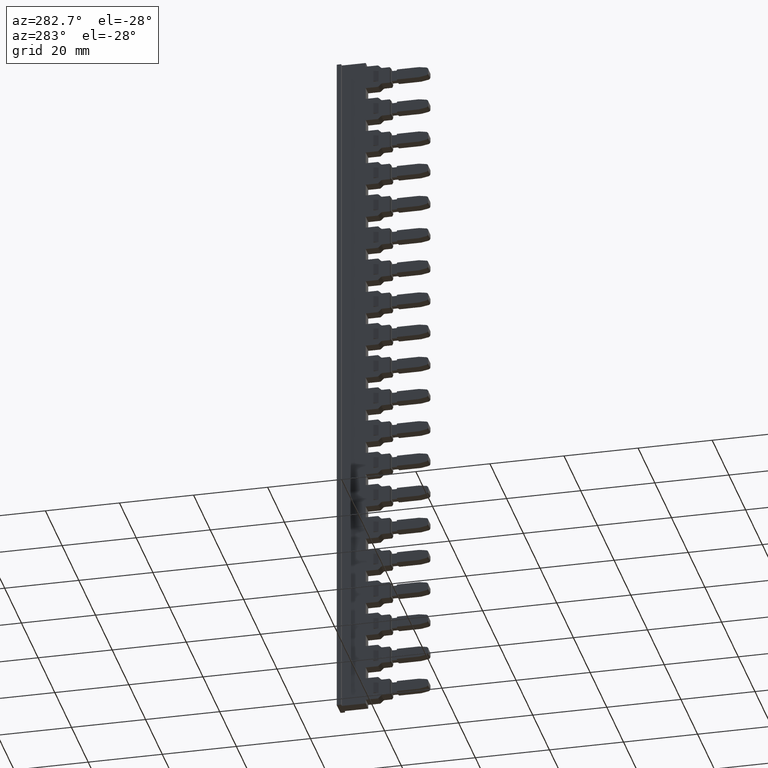
[diagram: clean part render]
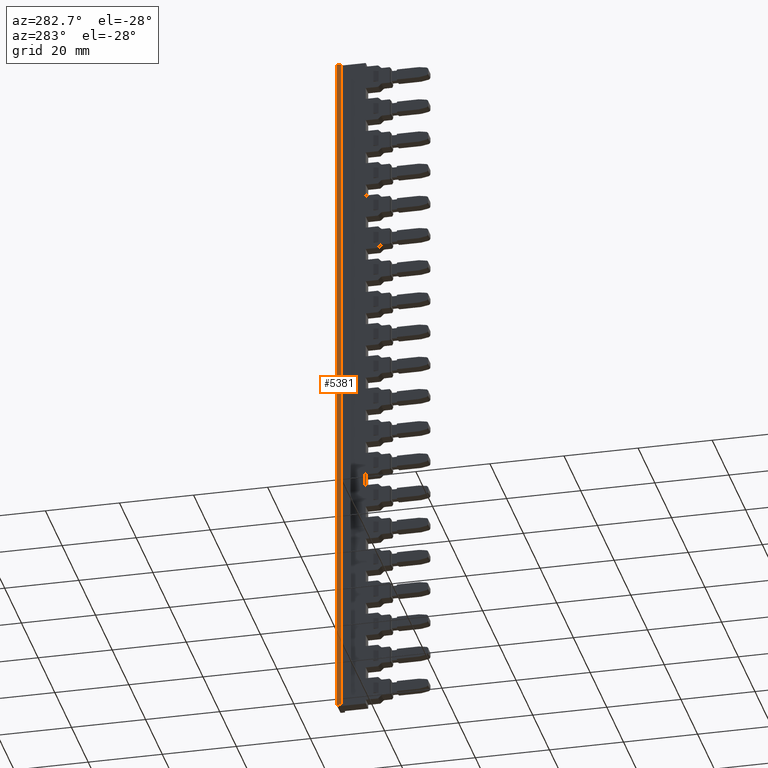
[diagram: same view with one face highlighted and labeled with its STEP entity id]
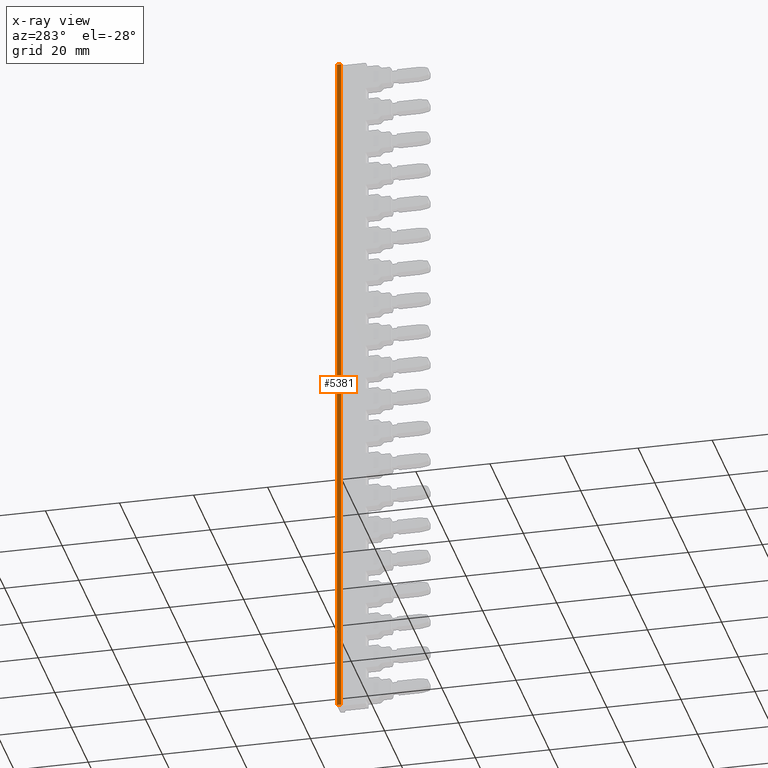
[diagram: x-ray of the same camera — body ghosted, the highlighted face saturated]
A machine part, auxiliary view. The second image highlights one B-rep face of the part: STEP entity #5381.
The next image is the same camera in x-ray: the body ghosted, the highlighted face saturated — about 0% of this face is hidden behind the body in this view.
In plain terms, the highlighted planar face has unit normal (-1, 0, -0).
Its self-contained STEP definition (entity closure, byte-faithful):
#2300 = CARTESIAN_POINT ( 'NONE',  ( 108.4779176201161600, 250.3101602475996100, -135.5933633786042900 ) ) ;
#2304 = CARTESIAN_POINT ( 'NONE',  ( 108.4779176201148200, 249.1101602475987400, 55.40663662139575500 ) ) ;
#2366 = CARTESIAN_POINT ( 'NONE',  ( 108.4779176201161600, 249.1101602475997400, -135.5933633786042900 ) ) ;
#2392 = CARTESIAN_POINT ( 'NONE',  ( 108.4779176201148200, 250.3101602475985600, 55.40663662139576200 ) ) ;
#5381 = ADVANCED_FACE ( 'NONE', ( #12068 ), #12017, .T. ) ;
#7362 = EDGE_LOOP ( 'NONE', ( #20097, #20149, #20046, #20048 ) ) ;
#8536 = CARTESIAN_POINT ( 'NONE',  ( 108.4779176201148200, 249.1101602475987400, 55.40663662139575500 ) ) ;
#8537 = LINE ( 'NONE', #8536, #23480 ) ;
#8569 = DIRECTION ( 'NONE',  ( 0.0000000000000000000, 1.000000000000000000, 0.0000000000000000000 ) ) ;
#8577 = DIRECTION ( 'NONE',  ( -1.332647435206765800E-042, 1.000000000000000000, 1.852552877793532400E-028 ) ) ;
#8578 = LINE ( 'NONE', #8579, #23614 ) ;
#8579 = CARTESIAN_POINT ( 'NONE',  ( 108.4779176201161200, 242.6435672046343700, -135.5933633786042900 ) ) ;
#8615 = EDGE_CURVE ( 'NONE', #18997, #19014, #8537, .T. ) ;
#8628 = EDGE_CURVE ( 'NONE', #19022, #18969, #8578, .T. ) ;
#8636 = EDGE_CURVE ( 'NONE', #19014, #18969, #24746, .T. ) ;
#8667 = EDGE_CURVE ( 'NONE', #18997, #19022, #24810, .T. ) ;
#12017 = PLANE ( 'NONE',  #20871 ) ;
#12045 = DIRECTION ( 'NONE',  ( -1.000000000000000000, 0.0000000000000000000, -7.193572994224081300E-015 ) ) ;
#12047 = DIRECTION ( 'NONE',  ( -7.193572994224081300E-015, 0.0000000000000000000, 1.000000000000000000 ) ) ;
#12063 = CARTESIAN_POINT ( 'NONE',  ( 108.4779176201148700, 249.1101602475988000, 50.00944813332089500 ) ) ;
#12068 = FACE_OUTER_BOUND ( 'NONE', #7362, .T. ) ;
#18969 = VERTEX_POINT ( 'NONE', #2300 ) ;
#18997 = VERTEX_POINT ( 'NONE', #2304 ) ;
#19014 = VERTEX_POINT ( 'NONE', #2392 ) ;
#19022 = VERTEX_POINT ( 'NONE', #2366 ) ;
#20046 = ORIENTED_EDGE ( 'NONE', *, *, #8667, .F. ) ;
#20048 = ORIENTED_EDGE ( 'NONE', *, *, #8615, .T. ) ;
#20097 = ORIENTED_EDGE ( 'NONE', *, *, #8636, .T. ) ;
#20149 = ORIENTED_EDGE ( 'NONE', *, *, #8628, .F. ) ;
#20871 = AXIS2_PLACEMENT_3D ( 'NONE', #12063, #12045, #12047 ) ;
#23480 = VECTOR ( 'NONE', #8569, 1000.000000000000000 ) ;
#23514 = VECTOR ( 'NONE', #24848, 1000.000000000000000 ) ;
#23520 = VECTOR ( 'NONE', #24742, 1000.000000000000000 ) ;
#23614 = VECTOR ( 'NONE', #8577, 1000.000000000000000 ) ;
#24742 = DIRECTION ( 'NONE',  ( -7.847720069483345500E-029, 2.968510761029626400E-015, -1.000000000000000000 ) ) ;
#24746 = LINE ( 'NONE', #24774, #23520 ) ;
#24774 = CARTESIAN_POINT ( 'NONE',  ( 108.4779176201148900, 250.3101602475986700, 27.30663662139573600 ) ) ;
#24789 = CARTESIAN_POINT ( 'NONE',  ( 108.4779176201148900, 249.1101602475988000, 50.00944813332089500 ) ) ;
#24810 = LINE ( 'NONE', #24789, #23514 ) ;
#24848 = DIRECTION ( 'NONE',  ( 0.0000000000000000000, 1.944757394685668700E-028, -1.000000000000000000 ) ) ;